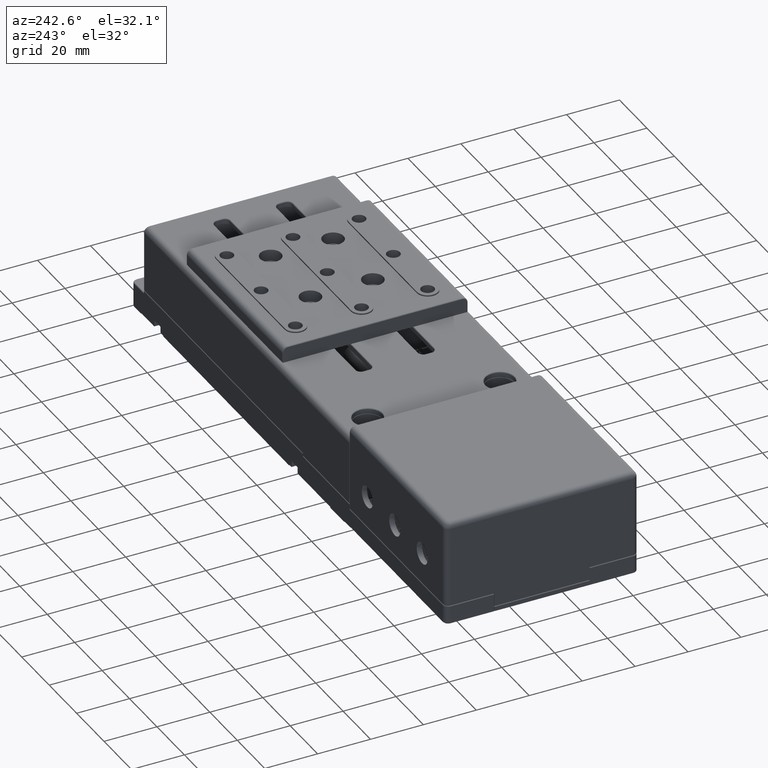
[diagram: clean part render]
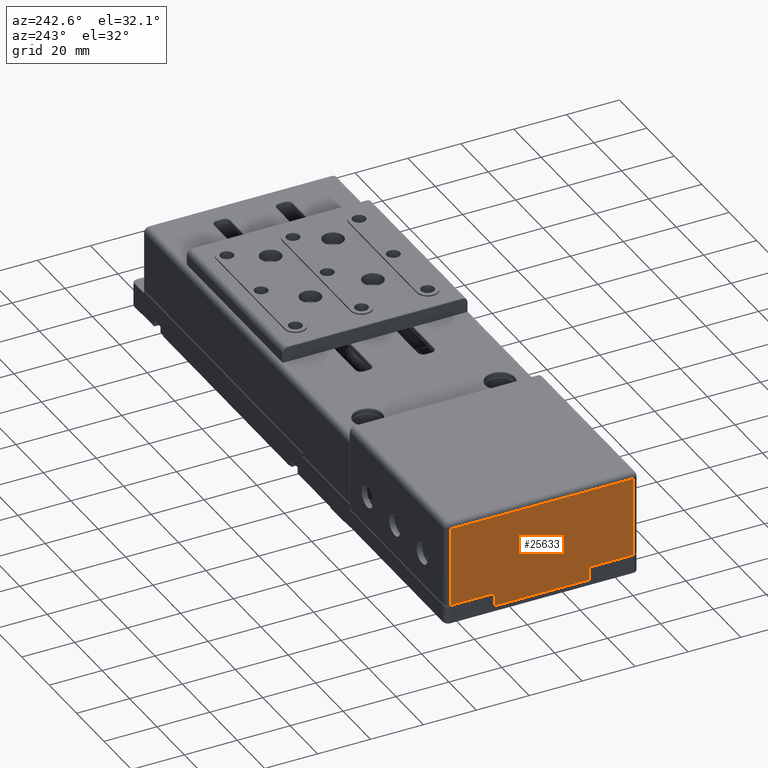
[diagram: same view with one face highlighted and labeled with its STEP entity id]
A machine part, auxiliary view. The second image highlights one B-rep face of the part: STEP entity #25633.
In plain terms, the highlighted planar face has unit normal (1, -0, 0).
Its self-contained STEP definition (entity closure, byte-faithful):
#342 = EDGE_CURVE ( 'NONE', #36162, #52637, #2408, .T. ) ;
#1273 = EDGE_CURVE ( 'NONE', #10878, #71504, #33835, .T. ) ;
#1591 = DIRECTION ( 'NONE',  ( 0.000000000000000000, 0.000000000000000000, 1.000000000000000000 ) ) ;
#2087 = CARTESIAN_POINT ( 'NONE',  ( -153.4252599814024904, -43.46919745025275006, 2.200000000000000178 ) ) ;
#2408 = LINE ( 'NONE', #36732, #35123 ) ;
#3980 = CARTESIAN_POINT ( 'NONE',  ( -153.4252599814024904, 25.53080254974725349, 2.200000000000000178 ) ) ;
#4825 = LINE ( 'NONE', #43961, #57648 ) ;
#5494 = VECTOR ( 'NONE', #22790, 1000.000000000000000 ) ;
#6049 = VECTOR ( 'NONE', #18716, 1000.000000000000000 ) ;
#8490 = CARTESIAN_POINT ( 'NONE',  ( -153.4252599814024904, -26.96919745025275006, 2.200000000000000178 ) ) ;
#10510 = VERTEX_POINT ( 'NONE', #25306 ) ;
#10878 = VERTEX_POINT ( 'NONE', #59111 ) ;
#11191 = VERTEX_POINT ( 'NONE', #3980 ) ;
#11434 = EDGE_CURVE ( 'NONE', #10510, #11191, #45264, .T. ) ;
#13933 = DIRECTION ( 'NONE',  ( -2.220446049250315053E-16, -1.000000000000000000, 0.000000000000000000 ) ) ;
#17238 = DIRECTION ( 'NONE',  ( 0.000000000000000000, 0.000000000000000000, -1.000000000000000000 ) ) ;
#18716 = DIRECTION ( 'NONE',  ( -2.775557561562890365E-16, -1.000000000000000000, 0.000000000000000000 ) ) ;
#19767 = VECTOR ( 'NONE', #47965, 1000.000000000000000 ) ;
#20569 = PLANE ( 'NONE',  #63556 ) ;
#20579 = ORIENTED_EDGE ( 'NONE', *, *, #342, .F. ) ;
#21364 = CARTESIAN_POINT ( 'NONE',  ( -153.4252599814024904, -43.46919745025275006, 2.200000000000000178 ) ) ;
#22415 = LINE ( 'NONE', #68137, #5494 ) ;
#22760 = DIRECTION ( 'NONE',  ( 0.000000000000000000, 0.000000000000000000, 1.000000000000000000 ) ) ;
#22790 = DIRECTION ( 'NONE',  ( -2.775557561562890365E-16, -1.000000000000000000, 0.000000000000000000 ) ) ;
#25306 = CARTESIAN_POINT ( 'NONE',  ( -153.4252599814024904, 25.53080254974725349, 32.50000000000000000 ) ) ;
#25633 = ADVANCED_FACE ( 'NONE', ( #54116 ), #20569, .F. ) ;
#28296 = CARTESIAN_POINT ( 'NONE',  ( -153.4252599814024904, -26.96919745025275006, -3.000000000000000000 ) ) ;
#29241 = ORIENTED_EDGE ( 'NONE', *, *, #44842, .T. ) ;
#30017 = CARTESIAN_POINT ( 'NONE',  ( -153.4252599814024904, -43.46919745025275006, 2.000000000000000000 ) ) ;
#30549 = DIRECTION ( 'NONE',  ( 1.000000000000000000, -2.220446049250315053E-16, 0.000000000000000000 ) ) ;
#31775 = VECTOR ( 'NONE', #1591, 1000.000000000000000 ) ;
#32436 = EDGE_LOOP ( 'NONE', ( #20579, #67328, #65237, #34281, #59021, #54130, #47628, #29241 ) ) ;
#33232 = EDGE_CURVE ( 'NONE', #36162, #10878, #4825, .T. ) ;
#33835 = LINE ( 'NONE', #28296, #45160 ) ;
#34281 = ORIENTED_EDGE ( 'NONE', *, *, #64622, .T. ) ;
#34943 = CARTESIAN_POINT ( 'NONE',  ( -153.4252599814024904, 9.030802549747221519, 2.200000000000000178 ) ) ;
#35123 = VECTOR ( 'NONE', #42985, 1000.000000000000000 ) ;
#36162 = VERTEX_POINT ( 'NONE', #67515 ) ;
#36732 = CARTESIAN_POINT ( 'NONE',  ( -153.4252599814024904, 9.030802549747221519, -3.000000000000000000 ) ) ;
#36931 = LINE ( 'NONE', #69381, #19767 ) ;
#39991 = LINE ( 'NONE', #30017, #31775 ) ;
#41632 = CARTESIAN_POINT ( 'NONE',  ( -153.4252599814024904, -45.46919745025279980, 2.000000000000000000 ) ) ;
#42985 = DIRECTION ( 'NONE',  ( 0.000000000000000000, 0.000000000000000000, 1.000000000000000000 ) ) ;
#43961 = CARTESIAN_POINT ( 'NONE',  ( -153.4252599814024904, -26.96919745025275006, -2.799999999999999822 ) ) ;
#44842 = EDGE_CURVE ( 'NONE', #11191, #52637, #22415, .T. ) ;
#45160 = VECTOR ( 'NONE', #22760, 1000.000000000000000 ) ;
#45264 = LINE ( 'NONE', #67756, #56885 ) ;
#45996 = LINE ( 'NONE', #2087, #6049 ) ;
#47628 = ORIENTED_EDGE ( 'NONE', *, *, #11434, .T. ) ;
#47633 = CARTESIAN_POINT ( 'NONE',  ( -153.4252599814024904, -43.46919745025275006, 32.50000000000000000 ) ) ;
#47704 = EDGE_CURVE ( 'NONE', #59843, #64557, #39991, .T. ) ;
#47965 = DIRECTION ( 'NONE',  ( 2.775557561562890365E-16, 1.000000000000000000, 0.000000000000000000 ) ) ;
#48748 = DIRECTION ( 'NONE',  ( -2.775557561562890365E-16, -1.000000000000000000, 0.000000000000000000 ) ) ;
#52346 = EDGE_CURVE ( 'NONE', #64557, #10510, #36931, .T. ) ;
#52637 = VERTEX_POINT ( 'NONE', #34943 ) ;
#54116 = FACE_OUTER_BOUND ( 'NONE', #32436, .T. ) ;
#54130 = ORIENTED_EDGE ( 'NONE', *, *, #52346, .T. ) ;
#56885 = VECTOR ( 'NONE', #17238, 1000.000000000000000 ) ;
#57648 = VECTOR ( 'NONE', #48748, 1000.000000000000000 ) ;
#59021 = ORIENTED_EDGE ( 'NONE', *, *, #47704, .T. ) ;
#59111 = CARTESIAN_POINT ( 'NONE',  ( -153.4252599814024904, -26.96919745025275006, -2.799999999999999822 ) ) ;
#59843 = VERTEX_POINT ( 'NONE', #21364 ) ;
#63556 = AXIS2_PLACEMENT_3D ( 'NONE', #41632, #30549, #13933 ) ;
#64557 = VERTEX_POINT ( 'NONE', #47633 ) ;
#64622 = EDGE_CURVE ( 'NONE', #71504, #59843, #45996, .T. ) ;
#65237 = ORIENTED_EDGE ( 'NONE', *, *, #1273, .T. ) ;
#67328 = ORIENTED_EDGE ( 'NONE', *, *, #33232, .T. ) ;
#67515 = CARTESIAN_POINT ( 'NONE',  ( -153.4252599814024904, 9.030802549747221519, -2.799999999999999822 ) ) ;
#67756 = CARTESIAN_POINT ( 'NONE',  ( -153.4252599814024904, 25.53080254974725349, 2.000000000000000000 ) ) ;
#68137 = CARTESIAN_POINT ( 'NONE',  ( -153.4252599814024904, 9.030802549747221519, 2.200000000000000178 ) ) ;
#69381 = CARTESIAN_POINT ( 'NONE',  ( -153.4252599814024904, -45.46919745025279980, 32.50000000000000000 ) ) ;
#71504 = VERTEX_POINT ( 'NONE', #8490 ) ;